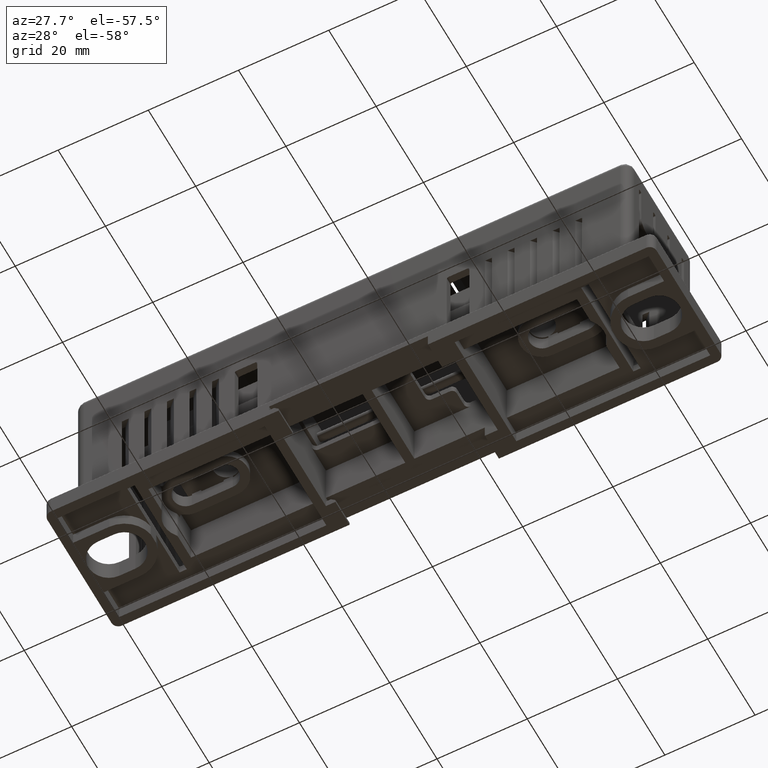
[diagram: clean part render]
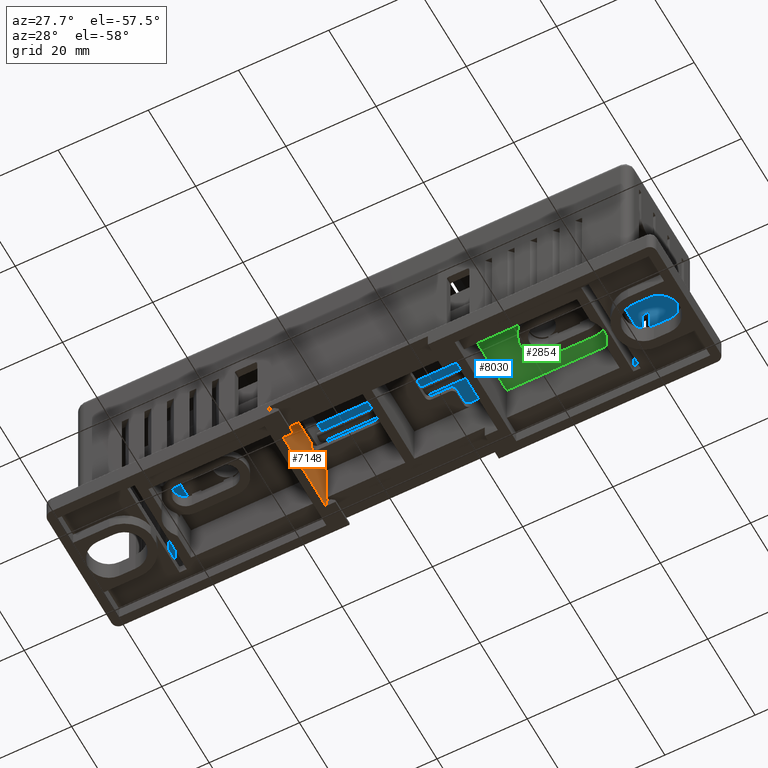
[diagram: same view with three faces highlighted in distinct colors, each labeled with its STEP entity id]
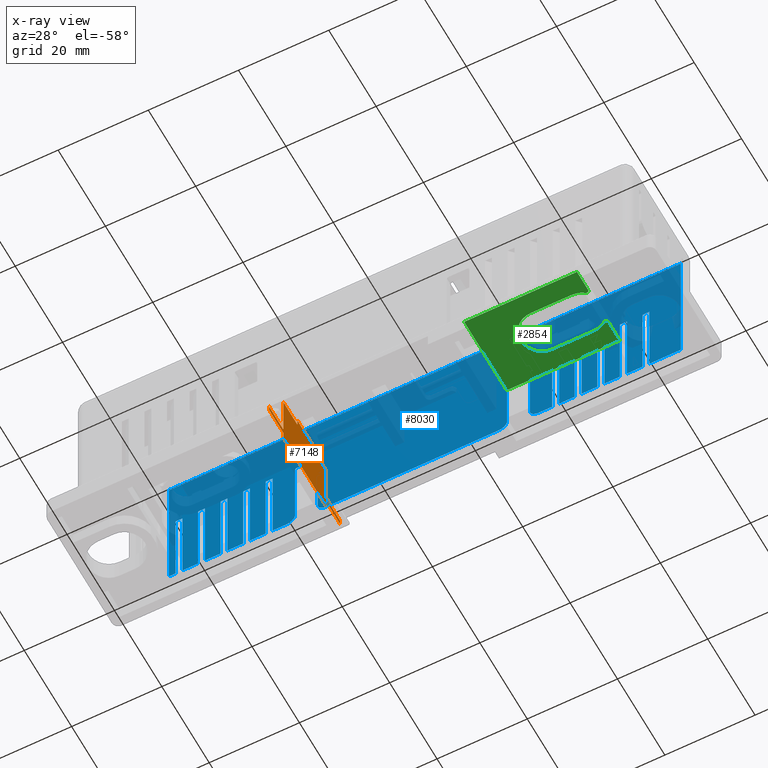
[diagram: x-ray of the same camera — body ghosted, the three highlighted faces saturated]
A machine part, auxiliary view with three faces highlighted in distinct colors.
The next image is the same camera in x-ray (body ghosted, the three faces saturated) — at least one of them is partly hidden behind the body in this view.
Their STEP definitions:

[orange] entity #7148 — the highlighted planar face has unit normal (-1, 0, 0).
#162 = CARTESIAN_POINT ( 'NONE',  ( 1.078740157480315043, 0.7480314960629921295, -0.5905511811023621549 ) ) ;
#219 = ORIENTED_EDGE ( 'NONE', *, *, #5783, .F. ) ;
#227 = DIRECTION ( 'NONE',  ( 0.000000000000000000, 0.000000000000000000, 1.000000000000000000 ) ) ;
#502 = ORIENTED_EDGE ( 'NONE', *, *, #15426, .F. ) ;
#676 = DIRECTION ( 'NONE',  ( 0.000000000000000000, 1.000000000000000000, -0.000000000000000000 ) ) ;
#881 = LINE ( 'NONE', #9620, #8648 ) ;
#936 = DIRECTION ( 'NONE',  ( 0.000000000000000000, 1.000000000000000000, -0.000000000000000000 ) ) ;
#955 = CARTESIAN_POINT ( 'NONE',  ( 1.078740157480315043, 0.2755905511811023723, -0.07874015748031495954 ) ) ;
#1229 = CARTESIAN_POINT ( 'NONE',  ( 1.078740157480315043, 0.9842519685039370358, -0.5905511811023621549 ) ) ;
#1665 = CARTESIAN_POINT ( 'NONE',  ( 1.078740157480315043, 0.03937007874015736181, -1.062992125984252079 ) ) ;
#2047 = CARTESIAN_POINT ( 'NONE',  ( 1.078740157480315043, -0.1968503937007874127, -0.5236220472440945573 ) ) ;
#2103 = LINE ( 'NONE', #3697, #16222 ) ;
#2160 = VERTEX_POINT ( 'NONE', #4886 ) ;
#2432 = LINE ( 'NONE', #7234, #14892 ) ;
#2438 = VECTOR ( 'NONE', #11738, 39.37007874015748143 ) ;
#2522 = EDGE_CURVE ( 'NONE', #15223, #11584, #8284, .T. ) ;
#2555 = VERTEX_POINT ( 'NONE', #3154 ) ;
#2673 = VERTEX_POINT ( 'NONE', #955 ) ;
#2746 = EDGE_CURVE ( 'NONE', #14456, #2555, #881, .T. ) ;
#2855 = VECTOR ( 'NONE', #12057, 39.37007874015748143 ) ;
#3147 = CARTESIAN_POINT ( 'NONE',  ( 1.078740157480315043, 0.7480314960629921295, -0.5905511811023621549 ) ) ;
#3154 = CARTESIAN_POINT ( 'NONE',  ( 1.078740157480314821, 0.03937007874015734793, -0.4724409448818898682 ) ) ;
#3588 = VECTOR ( 'NONE', #4410, 39.37007874015748143 ) ;
#3697 = CARTESIAN_POINT ( 'NONE',  ( 1.078740157480315043, -0.1968503937007874127, -0.01968503937007875723 ) ) ;
#3760 = DIRECTION ( 'NONE',  ( -0.000000000000000000, -0.000000000000000000, -1.000000000000000000 ) ) ;
#3939 = FACE_OUTER_BOUND ( 'NONE', #8940, .T. ) ;
#4124 = EDGE_CURVE ( 'NONE', #16445, #15964, #14734, .T. ) ;
#4334 = CARTESIAN_POINT ( 'NONE',  ( 1.078740157480314821, 0.9842519685039372579, -0.5236220472440945573 ) ) ;
#4410 = DIRECTION ( 'NONE',  ( -0.000000000000000000, -0.000000000000000000, -1.000000000000000000 ) ) ;
#4695 = CARTESIAN_POINT ( 'NONE',  ( 1.078740157480314821, 0.03937007874015735487, -0.07874015748031495954 ) ) ;
#4821 = LINE ( 'NONE', #13815, #9404 ) ;
#4886 = CARTESIAN_POINT ( 'NONE',  ( 1.078740157480315043, 0.9842519685039370358, -0.4724409448818898127 ) ) ;
#4889 = CARTESIAN_POINT ( 'NONE',  ( 1.078740157480315043, 0.5118110236220473341, -0.07874015748031495954 ) ) ;
#5165 = CARTESIAN_POINT ( 'NONE',  ( 1.078740157480315043, 0.2755905511811023723, -0.01968503937007875723 ) ) ;
#5284 = LINE ( 'NONE', #162, #11399 ) ;
#5448 = ORIENTED_EDGE ( 'NONE', *, *, #2522, .F. ) ;
#5512 = CARTESIAN_POINT ( 'NONE',  ( 1.078740157480315043, -0.1968503937007874127, -0.5236220472440945573 ) ) ;
#5585 = ORIENTED_EDGE ( 'NONE', *, *, #7050, .F. ) ;
#5651 = CARTESIAN_POINT ( 'NONE',  ( 1.078740157480314821, -0.1968503937007874127, -0.4724409448818898682 ) ) ;
#5752 = VERTEX_POINT ( 'NONE', #13702 ) ;
#5783 = EDGE_CURVE ( 'NONE', #15504, #5752, #2103, .T. ) ;
#5784 = EDGE_CURVE ( 'NONE', #16588, #12451, #2432, .T. ) ;
#5906 = VECTOR ( 'NONE', #14110, 39.37007874015748143 ) ;
#6117 = ORIENTED_EDGE ( 'NONE', *, *, #2746, .F. ) ;
#6183 = LINE ( 'NONE', #1229, #9060 ) ;
#6280 = ORIENTED_EDGE ( 'NONE', *, *, #11626, .F. ) ;
#6293 = CARTESIAN_POINT ( 'NONE',  ( 1.078740157480315043, -0.1968503937007874127, -0.5905511811023621549 ) ) ;
#6327 = EDGE_CURVE ( 'NONE', #11584, #16588, #5284, .T. ) ;
#6359 = DIRECTION ( 'NONE',  ( -0.000000000000000000, 0.000000000000000000, -1.000000000000000000 ) ) ;
#6469 = CARTESIAN_POINT ( 'NONE',  ( 1.078740157480315043, 0.2755905511811023723, -0.5905511811023621549 ) ) ;
#6514 = EDGE_CURVE ( 'NONE', #11901, #12451, #14603, .T. ) ;
#6567 = ORIENTED_EDGE ( 'NONE', *, *, #10080, .F. ) ;
#6792 = DIRECTION ( 'NONE',  ( 0.000000000000000000, -0.000000000000000000, -1.000000000000000000 ) ) ;
#6822 = LINE ( 'NONE', #15805, #10496 ) ;
#6910 = ORIENTED_EDGE ( 'NONE', *, *, #7875, .F. ) ;
#6937 = CARTESIAN_POINT ( 'NONE',  ( 1.078740157480315043, -0.1968503937007874127, -0.07874015748031495954 ) ) ;
#7050 = EDGE_CURVE ( 'NONE', #15964, #2160, #15028, .T. ) ;
#7103 = LINE ( 'NONE', #6937, #2855 ) ;
#7148 = ADVANCED_FACE ( 'NONE', ( #3939 ), #13853, .F. ) ;
#7234 = CARTESIAN_POINT ( 'NONE',  ( 1.078740157480315043, 0.3937007874015748254, -0.5905511811023621549 ) ) ;
#7650 = EDGE_CURVE ( 'NONE', #2555, #16563, #11732, .T. ) ;
#7705 = VECTOR ( 'NONE', #9375, 39.37007874015748143 ) ;
#7853 = ORIENTED_EDGE ( 'NONE', *, *, #5784, .F. ) ;
#7875 = EDGE_CURVE ( 'NONE', #16563, #2673, #7103, .T. ) ;
#7995 = ORIENTED_EDGE ( 'NONE', *, *, #13905, .F. ) ;
#8001 = CARTESIAN_POINT ( 'NONE',  ( 1.078740157480314821, 0.03937007874015736875, -0.5905511811023621549 ) ) ;
#8284 = LINE ( 'NONE', #5512, #7705 ) ;
#8324 = CARTESIAN_POINT ( 'NONE',  ( 1.078740157480315043, -0.1968503937007874127, -0.4724409448818898127 ) ) ;
#8329 = DIRECTION ( 'NONE',  ( -0.000000000000000000, 0.000000000000000000, 1.000000000000000000 ) ) ;
#8368 = DIRECTION ( 'NONE',  ( -0.000000000000000000, -1.000000000000000000, 0.000000000000000000 ) ) ;
#8648 = VECTOR ( 'NONE', #16325, 39.37007874015748143 ) ;
#8792 = EDGE_CURVE ( 'NONE', #2160, #15223, #6183, .T. ) ;
#8940 = EDGE_LOOP ( 'NONE', ( #502, #219, #7995, #6910, #16018, #6117, #11441, #6280, #15571, #7853, #9469, #5448, #14025, #5585, #15314, #6567 ) ) ;
#9060 = VECTOR ( 'NONE', #6359, 39.37007874015748143 ) ;
#9295 = AXIS2_PLACEMENT_3D ( 'NONE', #6293, #14024, #9989 ) ;
#9375 = DIRECTION ( 'NONE',  ( -0.000000000000000000, -1.000000000000000000, 0.000000000000000000 ) ) ;
#9404 = VECTOR ( 'NONE', #12631, 39.37007874015748143 ) ;
#9469 = ORIENTED_EDGE ( 'NONE', *, *, #6327, .F. ) ;
#9620 = CARTESIAN_POINT ( 'NONE',  ( 1.078740157480315043, -0.1968503937007874127, -0.4724409448818898127 ) ) ;
#9989 = DIRECTION ( 'NONE',  ( 0.000000000000000000, 0.000000000000000000, 1.000000000000000000 ) ) ;
#10080 = EDGE_CURVE ( 'NONE', #14604, #16445, #11817, .T. ) ;
#10163 = DIRECTION ( 'NONE',  ( -0.000000000000000000, -1.000000000000000000, -0.000000000000000000 ) ) ;
#10365 = VECTOR ( 'NONE', #676, 39.37007874015748143 ) ;
#10429 = CARTESIAN_POINT ( 'NONE',  ( 1.078740157480314821, -0.1968503937007874127, -0.5236220472440945573 ) ) ;
#10496 = VECTOR ( 'NONE', #8329, 39.37007874015748143 ) ;
#10515 = VECTOR ( 'NONE', #8368, 39.37007874015748143 ) ;
#10606 = VERTEX_POINT ( 'NONE', #10429 ) ;
#11399 = VECTOR ( 'NONE', #3760, 39.37007874015748143 ) ;
#11434 = VECTOR ( 'NONE', #227, 39.37007874015748143 ) ;
#11441 = ORIENTED_EDGE ( 'NONE', *, *, #13573, .F. ) ;
#11584 = VERTEX_POINT ( 'NONE', #15834 ) ;
#11626 = EDGE_CURVE ( 'NONE', #11901, #10606, #14588, .T. ) ;
#11732 = LINE ( 'NONE', #12908, #11434 ) ;
#11738 = DIRECTION ( 'NONE',  ( 0.000000000000000000, 1.000000000000000000, -0.000000000000000000 ) ) ;
#11817 = LINE ( 'NONE', #15766, #2438 ) ;
#11901 = VERTEX_POINT ( 'NONE', #13133 ) ;
#12057 = DIRECTION ( 'NONE',  ( 0.000000000000000000, 1.000000000000000000, -0.000000000000000000 ) ) ;
#12173 = VECTOR ( 'NONE', #6792, 39.37007874015748143 ) ;
#12451 = VERTEX_POINT ( 'NONE', #8001 ) ;
#12631 = DIRECTION ( 'NONE',  ( -0.000000000000000000, -0.000000000000000000, -1.000000000000000000 ) ) ;
#12685 = LINE ( 'NONE', #6469, #5906 ) ;
#12908 = CARTESIAN_POINT ( 'NONE',  ( 1.078740157480315043, 0.03937007874015734793, -0.5905511811023621549 ) ) ;
#13133 = CARTESIAN_POINT ( 'NONE',  ( 1.078740157480314821, 0.03937007874015736875, -0.5236220472440945573 ) ) ;
#13573 = EDGE_CURVE ( 'NONE', #10606, #14456, #6822, .T. ) ;
#13702 = CARTESIAN_POINT ( 'NONE',  ( 1.078740157480315043, 0.5118110236220473341, -0.01968503937007875029 ) ) ;
#13815 = CARTESIAN_POINT ( 'NONE',  ( 1.078740157480315043, 0.5118110236220473341, -0.5905511811023621549 ) ) ;
#13853 = PLANE ( 'NONE',  #9295 ) ;
#13905 = EDGE_CURVE ( 'NONE', #2673, #15504, #12685, .T. ) ;
#14024 = DIRECTION ( 'NONE',  ( -1.000000000000000000, 0.000000000000000000, 0.000000000000000000 ) ) ;
#14025 = ORIENTED_EDGE ( 'NONE', *, *, #8792, .F. ) ;
#14110 = DIRECTION ( 'NONE',  ( 0.000000000000000000, 0.000000000000000000, 1.000000000000000000 ) ) ;
#14456 = VERTEX_POINT ( 'NONE', #5651 ) ;
#14588 = LINE ( 'NONE', #2047, #10515 ) ;
#14603 = LINE ( 'NONE', #1665, #12173 ) ;
#14604 = VERTEX_POINT ( 'NONE', #4889 ) ;
#14734 = LINE ( 'NONE', #3147, #3588 ) ;
#14858 = CARTESIAN_POINT ( 'NONE',  ( 1.078740157480314821, 0.7480314960629921295, -0.5905511811023621549 ) ) ;
#14892 = VECTOR ( 'NONE', #10163, 39.37007874015748143 ) ;
#15028 = LINE ( 'NONE', #8324, #10365 ) ;
#15223 = VERTEX_POINT ( 'NONE', #4334 ) ;
#15314 = ORIENTED_EDGE ( 'NONE', *, *, #4124, .F. ) ;
#15426 = EDGE_CURVE ( 'NONE', #5752, #14604, #4821, .T. ) ;
#15475 = CARTESIAN_POINT ( 'NONE',  ( 1.078740157480314821, 0.7480314960629921295, -0.4724409448818898682 ) ) ;
#15504 = VERTEX_POINT ( 'NONE', #5165 ) ;
#15571 = ORIENTED_EDGE ( 'NONE', *, *, #6514, .T. ) ;
#15623 = CARTESIAN_POINT ( 'NONE',  ( 1.078740157480314821, 0.7480314960629921295, -0.07874015748031495954 ) ) ;
#15766 = CARTESIAN_POINT ( 'NONE',  ( 1.078740157480315043, -0.1968503937007874127, -0.07874015748031495954 ) ) ;
#15805 = CARTESIAN_POINT ( 'NONE',  ( 1.078740157480315043, -0.1968503937007874127, -0.5905511811023621549 ) ) ;
#15834 = CARTESIAN_POINT ( 'NONE',  ( 1.078740157480314821, 0.7480314960629921295, -0.5236220472440945573 ) ) ;
#15964 = VERTEX_POINT ( 'NONE', #15475 ) ;
#16018 = ORIENTED_EDGE ( 'NONE', *, *, #7650, .F. ) ;
#16222 = VECTOR ( 'NONE', #936, 39.37007874015748143 ) ;
#16325 = DIRECTION ( 'NONE',  ( 0.000000000000000000, 1.000000000000000000, -0.000000000000000000 ) ) ;
#16445 = VERTEX_POINT ( 'NONE', #15623 ) ;
#16563 = VERTEX_POINT ( 'NONE', #4695 ) ;
#16588 = VERTEX_POINT ( 'NONE', #14858 ) ;

[blue] entity #8030 — the highlighted planar face has unit normal (0, 1, 0).
#8 = CARTESIAN_POINT ( 'NONE',  ( 3.582283464566929254, 0.8661417322834645827, -0.3937007874015748254 ) ) ;
#29 = CARTESIAN_POINT ( 'NONE',  ( 0.5515748031496063852, 0.8661417322834645827, 0.3543307086614173596 ) ) ;
#32 = ORIENTED_EDGE ( 'NONE', *, *, #7324, .F. ) ;
#43 = ORIENTED_EDGE ( 'NONE', *, *, #13100, .F. ) ;
#117 = CARTESIAN_POINT ( 'NONE',  ( 0.6692913385826771977, 0.8661417322834645827, -0.3149606299212598381 ) ) ;
#215 = CIRCLE ( 'NONE', #9560, 0.07874015748031495954 ) ;
#234 = EDGE_CURVE ( 'NONE', #7308, #2625, #1391, .T. ) ;
#276 = VECTOR ( 'NONE', #9644, 39.37007874015748143 ) ;
#326 = VERTEX_POINT ( 'NONE', #9859 ) ;
#359 = CARTESIAN_POINT ( 'NONE',  ( 2.795275590551181466, 0.8661417322834645827, -0.3149606299212598381 ) ) ;
#367 = EDGE_CURVE ( 'NONE', #16227, #12740, #10952, .T. ) ;
#389 = VECTOR ( 'NONE', #16567, 39.37007874015748143 ) ;
#405 = DIRECTION ( 'NONE',  ( -0.000000000000000000, 0.000000000000000000, -1.000000000000000000 ) ) ;
#456 = VERTEX_POINT ( 'NONE', #1031 ) ;
#473 = DIRECTION ( 'NONE',  ( 0.000000000000000000, 0.000000000000000000, 1.000000000000000000 ) ) ;
#482 = DIRECTION ( 'NONE',  ( 0.000000000000000000, 1.000000000000000000, 0.000000000000000000 ) ) ;
#483 = EDGE_CURVE ( 'NONE', #9728, #2403, #12793, .T. ) ;
#507 = ORIENTED_EDGE ( 'NONE', *, *, #6531, .F. ) ;
#593 = ORIENTED_EDGE ( 'NONE', *, *, #2619, .F. ) ;
#647 = ORIENTED_EDGE ( 'NONE', *, *, #10897, .F. ) ;
#661 = EDGE_CURVE ( 'NONE', #11604, #9395, #15567, .T. ) ;
#681 = EDGE_CURVE ( 'NONE', #1687, #8729, #2003, .T. ) ;
#696 = EDGE_CURVE ( 'NONE', #7116, #13197, #8650, .T. ) ;
#753 = CARTESIAN_POINT ( 'NONE',  ( 1.771653543307086576, 0.8661417322834645827, -0.3937007874015748254 ) ) ;
#772 = CARTESIAN_POINT ( 'NONE',  ( 1.771653543307086576, 0.8661417322834645827, 0.3543307086614174151 ) ) ;
#817 = CARTESIAN_POINT ( 'NONE',  ( 2.618110236220472675, 0.8661417322834645827, 0.3346456692913382103 ) ) ;
#845 = CARTESIAN_POINT ( 'NONE',  ( 1.023622047244094668, 0.8661417322834645827, -0.3937007874015748254 ) ) ;
#864 = CARTESIAN_POINT ( 'NONE',  ( 3.779133858267716306, 0.8661417322834645827, -0.3937007874015748254 ) ) ;
#945 = EDGE_CURVE ( 'NONE', #9826, #4995, #2390, .T. ) ;
#1005 = ORIENTED_EDGE ( 'NONE', *, *, #681, .F. ) ;
#1031 = CARTESIAN_POINT ( 'NONE',  ( 3.188582677165354262, 0.8661417322834645827, 0.3543307086614175261 ) ) ;
#1066 = VECTOR ( 'NONE', #6122, 39.37007874015748143 ) ;
#1070 = ORIENTED_EDGE ( 'NONE', *, *, #483, .T. ) ;
#1076 = LINE ( 'NONE', #8820, #3383 ) ;
#1096 = LINE ( 'NONE', #4961, #8183 ) ;
#1115 = CARTESIAN_POINT ( 'NONE',  ( 1.771653543307086576, 0.8661417322834645827, -0.3937007874015748254 ) ) ;
#1137 = ORIENTED_EDGE ( 'NONE', *, *, #12761, .F. ) ;
#1140 = VERTEX_POINT ( 'NONE', #2233 ) ;
#1207 = EDGE_CURVE ( 'NONE', #1140, #11691, #15837, .T. ) ;
#1219 = ORIENTED_EDGE ( 'NONE', *, *, #7146, .F. ) ;
#1242 = VECTOR ( 'NONE', #7021, 39.37007874015748143 ) ;
#1294 = CARTESIAN_POINT ( 'NONE',  ( 1.771653543307086576, 0.8661417322834645827, -0.3937007874015748254 ) ) ;
#1304 = VECTOR ( 'NONE', #11782, 39.37007874015748143 ) ;
#1318 = LINE ( 'NONE', #2488, #7037 ) ;
#1364 = ORIENTED_EDGE ( 'NONE', *, *, #8798, .T. ) ;
#1391 = LINE ( 'NONE', #8029, #13160 ) ;
#1393 = DIRECTION ( 'NONE',  ( 0.000000000000000000, 0.000000000000000000, 1.000000000000000000 ) ) ;
#1462 = EDGE_CURVE ( 'NONE', #14804, #16016, #215, .T. ) ;
#1514 = CARTESIAN_POINT ( 'NONE',  ( -0.03897637795275581823, 0.8661417322834645827, -0.3937007874015748254 ) ) ;
#1519 = CARTESIAN_POINT ( 'NONE',  ( 0.9448818897637796255, 0.8661417322834645827, -0.3149606299212598381 ) ) ;
#1561 = LINE ( 'NONE', #14586, #4762 ) ;
#1615 = VECTOR ( 'NONE', #3987, 39.37007874015748143 ) ;
#1687 = VERTEX_POINT ( 'NONE', #3898 ) ;
#1750 = ORIENTED_EDGE ( 'NONE', *, *, #14448, .T. ) ;
#1770 = LINE ( 'NONE', #15553, #4675 ) ;
#1844 = VERTEX_POINT ( 'NONE', #6505 ) ;
#1847 = CARTESIAN_POINT ( 'NONE',  ( 2.795275590551181466, 0.8661417322834645827, -0.3937007874015748254 ) ) ;
#1859 = DIRECTION ( 'NONE',  ( -1.000000000000000000, -0.000000000000000000, 0.000000000000000000 ) ) ;
#1889 = EDGE_CURVE ( 'NONE', #8285, #5627, #5737, .T. ) ;
#1896 = VECTOR ( 'NONE', #4651, 39.37007874015748143 ) ;
#2003 = LINE ( 'NONE', #2328, #1066 ) ;
#2054 = VECTOR ( 'NONE', #15644, 39.37007874015748143 ) ;
#2062 = VECTOR ( 'NONE', #3278, 39.37007874015748143 ) ;
#2063 = DIRECTION ( 'NONE',  ( 0.000000000000000000, -0.000000000000000000, 1.000000000000000000 ) ) ;
#2079 = VERTEX_POINT ( 'NONE', #8 ) ;
#2086 = ORIENTED_EDGE ( 'NONE', *, *, #3240, .F. ) ;
#2119 = ORIENTED_EDGE ( 'NONE', *, *, #14030, .F. ) ;
#2157 = VECTOR ( 'NONE', #15664, 39.37007874015748143 ) ;
#2222 = LINE ( 'NONE', #11378, #10674 ) ;
#2231 = VERTEX_POINT ( 'NONE', #14379 ) ;
#2233 = CARTESIAN_POINT ( 'NONE',  ( 2.775590551181102761, 0.8661417322834645827, 0.3543307086614173596 ) ) ;
#2247 = VECTOR ( 'NONE', #12103, 39.37007874015748143 ) ;
#2267 = EDGE_CURVE ( 'NONE', #9170, #11743, #12020, .T. ) ;
#2307 = CARTESIAN_POINT ( 'NONE',  ( 2.598425196850393970, 0.8661417322834645827, 0.3346456692913382103 ) ) ;
#2328 = CARTESIAN_POINT ( 'NONE',  ( 0.3547244094488190558, 0.8661417322834645827, -0.3937007874015748254 ) ) ;
#2335 = CARTESIAN_POINT ( 'NONE',  ( 3.445275590551181377, 0.8661417322834645827, -0.3937007874015748254 ) ) ;
#2363 = ORIENTED_EDGE ( 'NONE', *, *, #14125, .F. ) ;
#2383 = DIRECTION ( 'NONE',  ( 0.000000000000000000, 1.000000000000000000, 0.000000000000000000 ) ) ;
#2390 = CIRCLE ( 'NONE', #11800, 0.07874015748031495954 ) ;
#2403 = VERTEX_POINT ( 'NONE', #14082 ) ;
#2466 = CARTESIAN_POINT ( 'NONE',  ( 0.5515748031496063852, 0.8661417322834646937, -0.3937007874015748810 ) ) ;
#2488 = CARTESIAN_POINT ( 'NONE',  ( 2.972440944881889813, 0.8661417322834645827, 0.3543307086614173596 ) ) ;
#2514 = DIRECTION ( 'NONE',  ( 0.000000000000000000, -0.000000000000000000, 1.000000000000000000 ) ) ;
#2575 = DIRECTION ( 'NONE',  ( 0.000000000000000000, 1.000000000000000000, 0.000000000000000000 ) ) ;
#2598 = CARTESIAN_POINT ( 'NONE',  ( 3.445275590551181377, 0.8661417322834645827, -0.3937007874015748254 ) ) ;
#2619 = EDGE_CURVE ( 'NONE', #3539, #13197, #1561, .T. ) ;
#2625 = VERTEX_POINT ( 'NONE', #7181 ) ;
#2683 = VECTOR ( 'NONE', #3002, 39.37007874015748143 ) ;
#2722 = AXIS2_PLACEMENT_3D ( 'NONE', #3086, #482, #5602 ) ;
#2774 = LINE ( 'NONE', #10161, #15955 ) ;
#2811 = VECTOR ( 'NONE', #10277, 39.37007874015748143 ) ;
#2844 = CARTESIAN_POINT ( 'NONE',  ( -0.3543307086614173596, 0.8661417322834645827, -0.3937007874015748254 ) ) ;
#2846 = VECTOR ( 'NONE', #10327, 39.37007874015748143 ) ;
#3002 = DIRECTION ( 'NONE',  ( 1.000000000000000000, 0.000000000000000000, -0.000000000000000000 ) ) ;
#3044 = CARTESIAN_POINT ( 'NONE',  ( 1.771653543307086576, 0.8661417322834645827, 0.8464566929133857665 ) ) ;
#3062 = VECTOR ( 'NONE', #11278, 39.37007874015748143 ) ;
#3086 = CARTESIAN_POINT ( 'NONE',  ( 0.7677165354330708347, 0.8661417322834645827, 0.3346456692913385988 ) ) ;
#3101 = CARTESIAN_POINT ( 'NONE',  ( 1.771653543307086576, 0.8661417322834645827, -0.3937007874015748254 ) ) ;
#3123 = CARTESIAN_POINT ( 'NONE',  ( 3.582283464566929254, 0.8661417322834645827, 0.3543307086614173596 ) ) ;
#3126 = CARTESIAN_POINT ( 'NONE',  ( -0.2956692913385827182, 0.8661417322834645827, 0.3543307086614173596 ) ) ;
#3166 = ORIENTED_EDGE ( 'NONE', *, *, #13026, .F. ) ;
#3187 = LINE ( 'NONE', #15880, #14327 ) ;
#3240 = EDGE_CURVE ( 'NONE', #7116, #13292, #9099, .T. ) ;
#3261 = LINE ( 'NONE', #11230, #3693 ) ;
#3278 = DIRECTION ( 'NONE',  ( -1.000000000000000000, -0.000000000000000000, 0.000000000000000000 ) ) ;
#3306 = ORIENTED_EDGE ( 'NONE', *, *, #5599, .F. ) ;
#3309 = DIRECTION ( 'NONE',  ( -1.000000000000000000, -0.000000000000000000, 0.000000000000000000 ) ) ;
#3310 = DIRECTION ( 'NONE',  ( 1.000000000000000000, 0.000000000000000000, 9.691192603222390418E-18 ) ) ;
#3321 = CARTESIAN_POINT ( 'NONE',  ( 1.771653543307086576, 0.8661417322834645827, -0.3937007874015748254 ) ) ;
#3329 = EDGE_LOOP ( 'NONE', ( #6129, #14094, #14475, #10969, #3306, #2119, #3166, #10644, #11233, #5278, #2086, #7702, #593, #3971, #10990, #10271, #1005, #32, #4681, #15530, #507, #4106, #5535, #5105, #8789, #13002, #12878, #15824, #14995, #9386, #13928, #13356, #12966, #2363, #11928, #7621, #7012, #7948, #8068, #1070, #5025, #11671, #1219, #1750, #10273, #10686, #647, #1364, #9001, #15227, #1137, #11385, #9115, #43, #16467, #16546, #10888, #12181, #6881, #12205 ) ) ;
#3343 = CARTESIAN_POINT ( 'NONE',  ( 3.248425196850393881, 0.8661417322834645827, -0.3937007874015748254 ) ) ;
#3368 = EDGE_CURVE ( 'NONE', #15183, #15455, #12112, .T. ) ;
#3383 = VECTOR ( 'NONE', #8739, 39.37007874015748143 ) ;
#3393 = VERTEX_POINT ( 'NONE', #3123 ) ;
#3410 = EDGE_CURVE ( 'NONE', #3393, #15455, #1318, .T. ) ;
#3539 = VERTEX_POINT ( 'NONE', #11007 ) ;
#3573 = EDGE_CURVE ( 'NONE', #4801, #6521, #14177, .T. ) ;
#3575 = VECTOR ( 'NONE', #3310, 39.37007874015748143 ) ;
#3613 = EDGE_CURVE ( 'NONE', #16263, #5913, #14565, .T. ) ;
#3635 = CARTESIAN_POINT ( 'NONE',  ( 2.972440944881889813, 0.8661417322834645827, 0.3543307086614173596 ) ) ;
#3671 = DIRECTION ( 'NONE',  ( 1.000000000000000000, 0.000000000000000000, 9.691192603222390418E-18 ) ) ;
#3678 = AXIS2_PLACEMENT_3D ( 'NONE', #10433, #15558, #9867 ) ;
#3693 = VECTOR ( 'NONE', #9731, 39.37007874015748143 ) ;
#3738 = VECTOR ( 'NONE', #9268, 39.37007874015748143 ) ;
#3822 = VECTOR ( 'NONE', #10602, 39.37007874015748143 ) ;
#3898 = CARTESIAN_POINT ( 'NONE',  ( 0.3547244094488189448, 0.8661417322834645827, -0.3937007874015748810 ) ) ;
#3968 = CARTESIAN_POINT ( 'NONE',  ( 1.771653543307086576, 0.8661417322834645827, 0.3543307086614174151 ) ) ;
#3971 = ORIENTED_EDGE ( 'NONE', *, *, #7842, .F. ) ;
#3987 = DIRECTION ( 'NONE',  ( -1.000000000000000000, -0.000000000000000000, 0.000000000000000000 ) ) ;
#3997 = DIRECTION ( 'NONE',  ( 0.000000000000000000, -0.000000000000000000, 1.000000000000000000 ) ) ;
#4097 = VECTOR ( 'NONE', #405, 39.37007874015748143 ) ;
#4106 = ORIENTED_EDGE ( 'NONE', *, *, #6845, .F. ) ;
#4150 = VERTEX_POINT ( 'NONE', #8687 ) ;
#4171 = EDGE_CURVE ( 'NONE', #2079, #7138, #16319, .T. ) ;
#4205 = CARTESIAN_POINT ( 'NONE',  ( 0.4917322834645669327, 0.8661417322834645827, 0.3543307086614173596 ) ) ;
#4258 = CARTESIAN_POINT ( 'NONE',  ( 2.972440944881889813, 0.8661417322834645827, 0.3543307086614173596 ) ) ;
#4267 = CARTESIAN_POINT ( 'NONE',  ( 0.4917322834645669882, 0.8661417322834645827, -0.3937007874015748810 ) ) ;
#4275 = LINE ( 'NONE', #3101, #276 ) ;
#4307 = VERTEX_POINT ( 'NONE', #12869 ) ;
#4523 = LINE ( 'NONE', #9565, #4825 ) ;
#4638 = DIRECTION ( 'NONE',  ( 1.000000000000000000, 0.000000000000000000, -0.000000000000000000 ) ) ;
#4651 = DIRECTION ( 'NONE',  ( -0.000000000000000000, 0.000000000000000000, -1.000000000000000000 ) ) ;
#4675 = VECTOR ( 'NONE', #9343, 39.37007874015748143 ) ;
#4681 = ORIENTED_EDGE ( 'NONE', *, *, #3573, .F. ) ;
#4689 = EDGE_CURVE ( 'NONE', #13292, #8275, #2774, .T. ) ;
#4703 = CARTESIAN_POINT ( 'NONE',  ( 2.519685039370078705, 0.8661417322834645827, -0.3937007874015748254 ) ) ;
#4711 = EDGE_CURVE ( 'NONE', #8275, #9324, #13105, .T. ) ;
#4751 = VECTOR ( 'NONE', #5977, 39.37007874015748143 ) ;
#4762 = VECTOR ( 'NONE', #6684, 39.37007874015748143 ) ;
#4801 = VERTEX_POINT ( 'NONE', #4205 ) ;
#4814 = DIRECTION ( 'NONE',  ( 1.000000000000000000, 0.000000000000000000, -0.000000000000000000 ) ) ;
#4825 = VECTOR ( 'NONE', #10823, 39.37007874015748143 ) ;
#4842 = VECTOR ( 'NONE', #4814, 39.37007874015748143 ) ;
#4961 = CARTESIAN_POINT ( 'NONE',  ( 3.248425196850393881, 0.8661417322834645827, -0.3937007874015748254 ) ) ;
#4987 = CARTESIAN_POINT ( 'NONE',  ( 3.779133858267716306, 0.8661417322834645827, -0.3937007874015748254 ) ) ;
#4995 = VERTEX_POINT ( 'NONE', #4703 ) ;
#5025 = ORIENTED_EDGE ( 'NONE', *, *, #9212, .F. ) ;
#5075 = CARTESIAN_POINT ( 'NONE',  ( 3.838976377952757257, 0.8661417322834642496, -0.3937007874015748254 ) ) ;
#5105 = ORIENTED_EDGE ( 'NONE', *, *, #9632, .F. ) ;
#5116 = LINE ( 'NONE', #11587, #2846 ) ;
#5155 = LINE ( 'NONE', #10529, #2811 ) ;
#5170 = CARTESIAN_POINT ( 'NONE',  ( 3.188582677165354262, 0.8661417322834645827, -0.3937007874015748254 ) ) ;
#5230 = CARTESIAN_POINT ( 'NONE',  ( 0.7480314960629921295, 0.8661417322834645827, 0.3346456692913385988 ) ) ;
#5235 = FACE_OUTER_BOUND ( 'NONE', #3329, .T. ) ;
#5278 = ORIENTED_EDGE ( 'NONE', *, *, #4689, .F. ) ;
#5309 = EDGE_CURVE ( 'NONE', #15909, #9324, #14829, .T. ) ;
#5319 = CARTESIAN_POINT ( 'NONE',  ( 2.991732283464567210, 0.8661417322834646937, 0.3543307086614174151 ) ) ;
#5382 = VECTOR ( 'NONE', #3309, 39.37007874015748143 ) ;
#5442 = CARTESIAN_POINT ( 'NONE',  ( 2.972440944881889813, 0.8661417322834645827, 0.3543307086614173596 ) ) ;
#5456 = LINE ( 'NONE', #5533, #9562 ) ;
#5483 = EDGE_CURVE ( 'NONE', #9498, #10291, #12470, .T. ) ;
#5513 = VERTEX_POINT ( 'NONE', #29 ) ;
#5525 = DIRECTION ( 'NONE',  ( 0.000000000000000000, 0.000000000000000000, 1.000000000000000000 ) ) ;
#5533 = CARTESIAN_POINT ( 'NONE',  ( 1.771653543307086576, 0.8661417322834645827, -0.3937007874015748254 ) ) ;
#5535 = ORIENTED_EDGE ( 'NONE', *, *, #661, .F. ) ;
#5599 = EDGE_CURVE ( 'NONE', #8229, #8285, #5155, .T. ) ;
#5602 = DIRECTION ( 'NONE',  ( 0.000000000000000000, 0.000000000000000000, 1.000000000000000000 ) ) ;
#5627 = VERTEX_POINT ( 'NONE', #3126 ) ;
#5731 = EDGE_CURVE ( 'NONE', #14134, #326, #1096, .T. ) ;
#5737 = LINE ( 'NONE', #772, #14406 ) ;
#5790 = DIRECTION ( 'NONE',  ( 1.000000000000000000, 0.000000000000000000, 9.691192603222390418E-18 ) ) ;
#5857 = CARTESIAN_POINT ( 'NONE',  ( 1.771653543307086576, 0.8661417322834645827, -0.3937007874015748254 ) ) ;
#5913 = VERTEX_POINT ( 'NONE', #1519 ) ;
#5926 = LINE ( 'NONE', #3321, #1242 ) ;
#5935 = CIRCLE ( 'NONE', #7838, 0.01968503937007875723 ) ;
#5971 = VECTOR ( 'NONE', #12610, 39.37007874015748143 ) ;
#5976 = LINE ( 'NONE', #13690, #8091 ) ;
#5977 = DIRECTION ( 'NONE',  ( 0.000000000000000000, -0.000000000000000000, 1.000000000000000000 ) ) ;
#6017 = EDGE_CURVE ( 'NONE', #7138, #1844, #9000, .T. ) ;
#6101 = CARTESIAN_POINT ( 'NONE',  ( 0.5515748031496063852, 0.8661417322834645827, -0.3937007874015748254 ) ) ;
#6106 = EDGE_CURVE ( 'NONE', #9498, #11689, #3187, .T. ) ;
#6122 = DIRECTION ( 'NONE',  ( 0.000000000000000000, -0.000000000000000000, 1.000000000000000000 ) ) ;
#6129 = ORIENTED_EDGE ( 'NONE', *, *, #234, .F. ) ;
#6195 = VECTOR ( 'NONE', #3671, 39.37007874015748143 ) ;
#6290 = VERTEX_POINT ( 'NONE', #10148 ) ;
#6335 = CARTESIAN_POINT ( 'NONE',  ( 0.9448818897637796255, 0.8661417322834645827, 0.3346456692913385988 ) ) ;
#6420 = DIRECTION ( 'NONE',  ( -1.000000000000000000, -0.000000000000000000, 0.000000000000000000 ) ) ;
#6505 = CARTESIAN_POINT ( 'NONE',  ( 3.445275590551181377, 0.8661417322834645827, 0.3543307086614175261 ) ) ;
#6521 = VERTEX_POINT ( 'NONE', #4267 ) ;
#6531 = EDGE_CURVE ( 'NONE', #9233, #5513, #9393, .T. ) ;
#6578 = CARTESIAN_POINT ( 'NONE',  ( 0.7480314960629921295, 0.8661417322834645827, -0.3937007874015748254 ) ) ;
#6589 = VERTEX_POINT ( 'NONE', #2307 ) ;
#6684 = DIRECTION ( 'NONE',  ( 0.000000000000000000, -0.000000000000000000, 1.000000000000000000 ) ) ;
#6698 = AXIS2_PLACEMENT_3D ( 'NONE', #117, #15022, #15104 ) ;
#6736 = LINE ( 'NONE', #6578, #1304 ) ;
#6759 = LINE ( 'NONE', #11890, #2157 ) ;
#6772 = DIRECTION ( 'NONE',  ( 0.000000000000000000, 0.000000000000000000, 1.000000000000000000 ) ) ;
#6787 = CARTESIAN_POINT ( 'NONE',  ( 1.023622047244094668, 0.8661417322834645827, -0.3149606299212598381 ) ) ;
#6845 = EDGE_CURVE ( 'NONE', #9395, #9233, #1770, .T. ) ;
#6855 = CARTESIAN_POINT ( 'NONE',  ( 2.874015748031495843, 0.8661417322834645827, -0.3149606299212598381 ) ) ;
#6858 = CARTESIAN_POINT ( 'NONE',  ( 0.7480314960629922405, 0.8661417322834645827, -0.3149606299212598381 ) ) ;
#6881 = ORIENTED_EDGE ( 'NONE', *, *, #6106, .T. ) ;
#6923 = EDGE_CURVE ( 'NONE', #16016, #11691, #8167, .T. ) ;
#7012 = ORIENTED_EDGE ( 'NONE', *, *, #1462, .F. ) ;
#7021 = DIRECTION ( 'NONE',  ( -1.000000000000000000, -0.000000000000000000, 0.000000000000000000 ) ) ;
#7022 = AXIS2_PLACEMENT_3D ( 'NONE', #8451, #11979, #473 ) ;
#7037 = VECTOR ( 'NONE', #4638, 39.37007874015748143 ) ;
#7046 = VECTOR ( 'NONE', #14395, 39.37007874015748143 ) ;
#7075 = EDGE_CURVE ( 'NONE', #4150, #13148, #1076, .T. ) ;
#7116 = VERTEX_POINT ( 'NONE', #16621 ) ;
#7138 = VERTEX_POINT ( 'NONE', #2335 ) ;
#7145 = CARTESIAN_POINT ( 'NONE',  ( 3.838976377952756369, 0.8661417322834645827, -0.3937007874015748254 ) ) ;
#7146 = EDGE_CURVE ( 'NONE', #456, #9170, #5116, .T. ) ;
#7181 = CARTESIAN_POINT ( 'NONE',  ( -0.3543307086614173596, 0.8661417322834645827, 0.8464566929133857665 ) ) ;
#7308 = VERTEX_POINT ( 'NONE', #2844 ) ;
#7315 = DIRECTION ( 'NONE',  ( -4.845596301611203683E-18, 4.845596301611196750E-18, 1.000000000000000000 ) ) ;
#7324 = EDGE_CURVE ( 'NONE', #6521, #1687, #5456, .T. ) ;
#7356 = DIRECTION ( 'NONE',  ( 0.000000000000000000, -0.000000000000000000, 1.000000000000000000 ) ) ;
#7397 = LINE ( 'NONE', #9755, #16098 ) ;
#7452 = CARTESIAN_POINT ( 'NONE',  ( 3.385433070866141758, 0.8661417322834645827, 0.3543307086614175261 ) ) ;
#7508 = DIRECTION ( 'NONE',  ( -0.000000000000000000, 0.000000000000000000, -1.000000000000000000 ) ) ;
#7621 = ORIENTED_EDGE ( 'NONE', *, *, #6923, .F. ) ;
#7647 = CARTESIAN_POINT ( 'NONE',  ( 0.9251968503937008093, 0.8661417322834645827, 0.3543307086614173596 ) ) ;
#7702 = ORIENTED_EDGE ( 'NONE', *, *, #696, .T. ) ;
#7749 = PLANE ( 'NONE',  #3678 ) ;
#7766 = LINE ( 'NONE', #12883, #1615 ) ;
#7795 = VECTOR ( 'NONE', #8474, 39.37007874015748143 ) ;
#7838 = AXIS2_PLACEMENT_3D ( 'NONE', #817, #13836, #8639 ) ;
#7842 = EDGE_CURVE ( 'NONE', #13148, #3539, #5926, .T. ) ;
#7948 = ORIENTED_EDGE ( 'NONE', *, *, #15554, .F. ) ;
#7949 = DIRECTION ( 'NONE',  ( 0.000000000000000000, 1.000000000000000000, 0.000000000000000000 ) ) ;
#8029 = CARTESIAN_POINT ( 'NONE',  ( -0.3543307086614173596, 0.8661417322834645827, -0.3937007874015748254 ) ) ;
#8030 = ADVANCED_FACE ( 'NONE', ( #5235 ), #7749, .F. ) ;
#8043 = CARTESIAN_POINT ( 'NONE',  ( 0.4917322834645669882, 0.8661417322834645827, -0.3937007874015748254 ) ) ;
#8066 = EDGE_CURVE ( 'NONE', #2625, #11689, #15721, .T. ) ;
#8068 = ORIENTED_EDGE ( 'NONE', *, *, #13226, .F. ) ;
#8091 = VECTOR ( 'NONE', #7315, 39.37007874015748143 ) ;
#8167 = LINE ( 'NONE', #1847, #2247 ) ;
#8183 = VECTOR ( 'NONE', #13790, 39.37007874015748143 ) ;
#8190 = LINE ( 'NONE', #9522, #7046 ) ;
#8229 = VERTEX_POINT ( 'NONE', #11176 ) ;
#8275 = VERTEX_POINT ( 'NONE', #15117 ) ;
#8277 = EDGE_CURVE ( 'NONE', #5913, #15450, #16221, .T. ) ;
#8285 = VERTEX_POINT ( 'NONE', #8420 ) ;
#8372 = VERTEX_POINT ( 'NONE', #7647 ) ;
#8405 = VERTEX_POINT ( 'NONE', #16625 ) ;
#8420 = CARTESIAN_POINT ( 'NONE',  ( -0.2358267716535433212, 0.8661417322834645827, 0.3543307086614173596 ) ) ;
#8443 = VECTOR ( 'NONE', #2514, 39.37007874015748143 ) ;
#8451 = CARTESIAN_POINT ( 'NONE',  ( 0.9251968503937008093, 0.8661417322834645827, 0.3346456692913385988 ) ) ;
#8474 = DIRECTION ( 'NONE',  ( -1.000000000000000000, -0.000000000000000000, 0.000000000000000000 ) ) ;
#8639 = DIRECTION ( 'NONE',  ( 0.000000000000000000, 0.000000000000000000, 1.000000000000000000 ) ) ;
#8650 = LINE ( 'NONE', #12506, #12607 ) ;
#8653 = EDGE_CURVE ( 'NONE', #4150, #8729, #3261, .T. ) ;
#8659 = VERTEX_POINT ( 'NONE', #13668 ) ;
#8687 = CARTESIAN_POINT ( 'NONE',  ( 0.2948818897637795478, 0.8661417322834645827, 0.3543307086614173596 ) ) ;
#8729 = VERTEX_POINT ( 'NONE', #8803 ) ;
#8739 = DIRECTION ( 'NONE',  ( -0.000000000000000000, 0.000000000000000000, -1.000000000000000000 ) ) ;
#8789 = ORIENTED_EDGE ( 'NONE', *, *, #10016, .T. ) ;
#8798 = EDGE_CURVE ( 'NONE', #16529, #1844, #13248, .T. ) ;
#8803 = CARTESIAN_POINT ( 'NONE',  ( 0.3547244094488189448, 0.8661417322834645827, 0.3543307086614173596 ) ) ;
#8820 = CARTESIAN_POINT ( 'NONE',  ( 0.2948818897637793812, 0.8661417322834645827, -0.3937007874015748254 ) ) ;
#8857 = CARTESIAN_POINT ( 'NONE',  ( 2.991732283464567210, 0.8661417322834646937, -0.3937007874015748254 ) ) ;
#8859 = CARTESIAN_POINT ( 'NONE',  ( 2.598425196850393970, 0.8661417322834645827, -0.3937007874015748254 ) ) ;
#8912 = CIRCLE ( 'NONE', #7022, 0.01968503937007875723 ) ;
#8918 = DIRECTION ( 'NONE',  ( -1.000000000000000000, -0.000000000000000000, 0.000000000000000000 ) ) ;
#9000 = LINE ( 'NONE', #2598, #13022 ) ;
#9001 = ORIENTED_EDGE ( 'NONE', *, *, #6017, .F. ) ;
#9068 = CARTESIAN_POINT ( 'NONE',  ( 3.642125984251968873, 0.8661417322834645827, -0.3937007874015748254 ) ) ;
#9099 = LINE ( 'NONE', #14053, #16424 ) ;
#9115 = ORIENTED_EDGE ( 'NONE', *, *, #3368, .F. ) ;
#9144 = DIRECTION ( 'NONE',  ( 0.000000000000000000, 0.000000000000000000, 1.000000000000000000 ) ) ;
#9170 = VERTEX_POINT ( 'NONE', #5170 ) ;
#9212 = EDGE_CURVE ( 'NONE', #11743, #2403, #2222, .T. ) ;
#9233 = VERTEX_POINT ( 'NONE', #2466 ) ;
#9268 = DIRECTION ( 'NONE',  ( -1.000000000000000000, -0.000000000000000000, 0.000000000000000000 ) ) ;
#9324 = VERTEX_POINT ( 'NONE', #12888 ) ;
#9343 = DIRECTION ( 'NONE',  ( -1.000000000000000000, -0.000000000000000000, 0.000000000000000000 ) ) ;
#9386 = ORIENTED_EDGE ( 'NONE', *, *, #11249, .F. ) ;
#9393 = LINE ( 'NONE', #6101, #15940 ) ;
#9395 = VERTEX_POINT ( 'NONE', #13636 ) ;
#9498 = VERTEX_POINT ( 'NONE', #16400 ) ;
#9522 = CARTESIAN_POINT ( 'NONE',  ( 3.385433070866141758, 0.8661417322834645827, -0.3937007874015748254 ) ) ;
#9543 = CARTESIAN_POINT ( 'NONE',  ( 4.114173228346456490, 0.8661417322834646937, 0.8464566929133857665 ) ) ;
#9560 = AXIS2_PLACEMENT_3D ( 'NONE', #6855, #7949, #6772 ) ;
#9562 = VECTOR ( 'NONE', #10574, 39.37007874015748143 ) ;
#9565 = CARTESIAN_POINT ( 'NONE',  ( 1.771653543307086576, 0.8661417322834645827, -0.3937007874015748254 ) ) ;
#9632 = EDGE_CURVE ( 'NONE', #10590, #11604, #6736, .T. ) ;
#9644 = DIRECTION ( 'NONE',  ( -1.000000000000000000, -0.000000000000000000, 0.000000000000000000 ) ) ;
#9728 = VERTEX_POINT ( 'NONE', #5319 ) ;
#9731 = DIRECTION ( 'NONE',  ( 1.000000000000000000, 0.000000000000000000, 9.691192603222390418E-18 ) ) ;
#9755 = CARTESIAN_POINT ( 'NONE',  ( 1.771653543307086576, 0.8661417322834645827, -0.3937007874015748254 ) ) ;
#9793 = LINE ( 'NONE', #14839, #15313 ) ;
#9826 = VERTEX_POINT ( 'NONE', #14862 ) ;
#9859 = CARTESIAN_POINT ( 'NONE',  ( 3.248425196850393881, 0.8661417322834645827, 0.3543307086614175261 ) ) ;
#9867 = DIRECTION ( 'NONE',  ( 0.000000000000000000, -0.000000000000000000, 1.000000000000000000 ) ) ;
#9892 = EDGE_CURVE ( 'NONE', #4801, #5513, #10310, .T. ) ;
#9946 = LINE ( 'NONE', #8859, #13426 ) ;
#10016 = EDGE_CURVE ( 'NONE', #10590, #2231, #15063, .T. ) ;
#10108 = CARTESIAN_POINT ( 'NONE',  ( 3.051574803149606829, 0.8661417322834645827, -0.3937007874015748254 ) ) ;
#10148 = CARTESIAN_POINT ( 'NONE',  ( 2.618110236220472675, 0.8661417322834645827, 0.3543307086614173596 ) ) ;
#10161 = CARTESIAN_POINT ( 'NONE',  ( 1.771653543307086576, 0.8661417322834645827, -0.3937007874015748254 ) ) ;
#10198 = AXIS2_PLACEMENT_3D ( 'NONE', #11552, #2383, #1393 ) ;
#10222 = CARTESIAN_POINT ( 'NONE',  ( -0.2559055118110236671, 0.8661417322834645827, 0.3543307086614173596 ) ) ;
#10271 = ORIENTED_EDGE ( 'NONE', *, *, #8653, .T. ) ;
#10273 = ORIENTED_EDGE ( 'NONE', *, *, #5731, .F. ) ;
#10277 = DIRECTION ( 'NONE',  ( 0.000000000000000000, -0.000000000000000000, 1.000000000000000000 ) ) ;
#10291 = VERTEX_POINT ( 'NONE', #5075 ) ;
#10310 = LINE ( 'NONE', #10222, #6195 ) ;
#10327 = DIRECTION ( 'NONE',  ( -0.000000000000000000, 0.000000000000000000, -1.000000000000000000 ) ) ;
#10433 = CARTESIAN_POINT ( 'NONE',  ( 1.771653543307086576, 0.8661417322834645827, -0.3937007874015748254 ) ) ;
#10529 = CARTESIAN_POINT ( 'NONE',  ( -0.2358267716535434044, 0.8661417322834645827, -0.3937007874015748254 ) ) ;
#10574 = DIRECTION ( 'NONE',  ( -1.000000000000000000, -0.000000000000000000, 0.000000000000000000 ) ) ;
#10590 = VERTEX_POINT ( 'NONE', #5230 ) ;
#10602 = DIRECTION ( 'NONE',  ( 0.000000000000000000, -0.000000000000000000, 1.000000000000000000 ) ) ;
#10644 = ORIENTED_EDGE ( 'NONE', *, *, #5309, .T. ) ;
#10674 = VECTOR ( 'NONE', #7356, 39.37007874015748143 ) ;
#10686 = ORIENTED_EDGE ( 'NONE', *, *, #13689, .F. ) ;
#10714 = DIRECTION ( 'NONE',  ( 1.000000000000000000, 0.000000000000000000, -0.000000000000000000 ) ) ;
#10823 = DIRECTION ( 'NONE',  ( -1.000000000000000000, -0.000000000000000000, 0.000000000000000000 ) ) ;
#10888 = ORIENTED_EDGE ( 'NONE', *, *, #16190, .T. ) ;
#10897 = EDGE_CURVE ( 'NONE', #16529, #4307, #8190, .T. ) ;
#10952 = LINE ( 'NONE', #14828, #5382 ) ;
#10969 = ORIENTED_EDGE ( 'NONE', *, *, #1889, .F. ) ;
#10976 = LINE ( 'NONE', #5857, #11575 ) ;
#10990 = ORIENTED_EDGE ( 'NONE', *, *, #7075, .F. ) ;
#11003 = CARTESIAN_POINT ( 'NONE',  ( 0.9448818897637796255, 0.8661417322834645827, -0.3937007874015748254 ) ) ;
#11007 = CARTESIAN_POINT ( 'NONE',  ( 0.1578740157480314765, 0.8661417322834645827, -0.3937007874015748810 ) ) ;
#11025 = LINE ( 'NONE', #864, #5971 ) ;
#11043 = VECTOR ( 'NONE', #15116, 39.37007874015748143 ) ;
#11176 = CARTESIAN_POINT ( 'NONE',  ( -0.2358267716535433767, 0.8661417322834645827, -0.3937007874015748810 ) ) ;
#11230 = CARTESIAN_POINT ( 'NONE',  ( -0.2559055118110236671, 0.8661417322834645827, 0.3543307086614173596 ) ) ;
#11233 = ORIENTED_EDGE ( 'NONE', *, *, #4711, .F. ) ;
#11247 = CARTESIAN_POINT ( 'NONE',  ( 3.838976377952757257, 0.8661417322834646937, 0.3543307086614176926 ) ) ;
#11249 = EDGE_CURVE ( 'NONE', #4995, #16263, #10976, .T. ) ;
#11278 = DIRECTION ( 'NONE',  ( -1.000000000000000000, 0.000000000000000000, -0.000000000000000000 ) ) ;
#11378 = CARTESIAN_POINT ( 'NONE',  ( 3.051574803149606829, 0.8661417322834645827, -0.3937007874015748254 ) ) ;
#11385 = ORIENTED_EDGE ( 'NONE', *, *, #3410, .T. ) ;
#11552 = CARTESIAN_POINT ( 'NONE',  ( 2.775590551181102761, 0.8661417322834645827, 0.3346456692913382103 ) ) ;
#11575 = VECTOR ( 'NONE', #16023, 39.37007874015748143 ) ;
#11587 = CARTESIAN_POINT ( 'NONE',  ( 3.188582677165354262, 0.8661417322834645827, -0.3937007874015748254 ) ) ;
#11604 = VERTEX_POINT ( 'NONE', #6858 ) ;
#11665 = EDGE_CURVE ( 'NONE', #8372, #15450, #8912, .T. ) ;
#11671 = ORIENTED_EDGE ( 'NONE', *, *, #2267, .F. ) ;
#11689 = VERTEX_POINT ( 'NONE', #9543 ) ;
#11691 = VERTEX_POINT ( 'NONE', #14669 ) ;
#11743 = VERTEX_POINT ( 'NONE', #10108 ) ;
#11755 = VERTEX_POINT ( 'NONE', #8857 ) ;
#11782 = DIRECTION ( 'NONE',  ( -0.000000000000000000, 0.000000000000000000, -1.000000000000000000 ) ) ;
#11800 = AXIS2_PLACEMENT_3D ( 'NONE', #15527, #2575, #9144 ) ;
#11890 = CARTESIAN_POINT ( 'NONE',  ( -0.09881889763779520830, 0.8661417322834645827, -0.3937007874015748254 ) ) ;
#11928 = ORIENTED_EDGE ( 'NONE', *, *, #1207, .T. ) ;
#11937 = DIRECTION ( 'NONE',  ( 0.000000000000000000, -0.000000000000000000, 1.000000000000000000 ) ) ;
#11966 = CARTESIAN_POINT ( 'NONE',  ( 2.991732283464567210, 0.8661417322834645827, -0.3937007874015748254 ) ) ;
#11979 = DIRECTION ( 'NONE',  ( 0.000000000000000000, 1.000000000000000000, 0.000000000000000000 ) ) ;
#12020 = LINE ( 'NONE', #753, #2062 ) ;
#12103 = DIRECTION ( 'NONE',  ( 0.000000000000000000, -0.000000000000000000, 1.000000000000000000 ) ) ;
#12112 = LINE ( 'NONE', #15895, #3822 ) ;
#12156 = EDGE_CURVE ( 'NONE', #12740, #15462, #11025, .T. ) ;
#12181 = ORIENTED_EDGE ( 'NONE', *, *, #5483, .F. ) ;
#12205 = ORIENTED_EDGE ( 'NONE', *, *, #8066, .F. ) ;
#12231 = DIRECTION ( 'NONE',  ( -0.000000000000000000, 0.000000000000000000, -1.000000000000000000 ) ) ;
#12390 = CARTESIAN_POINT ( 'NONE',  ( -0.2559055118110236671, 0.8661417322834645827, 0.3543307086614173596 ) ) ;
#12470 = LINE ( 'NONE', #13809, #3062 ) ;
#12500 = LINE ( 'NONE', #13760, #7795 ) ;
#12506 = CARTESIAN_POINT ( 'NONE',  ( -0.2559055118110236671, 0.8661417322834645827, 0.3543307086614173596 ) ) ;
#12595 = DIRECTION ( 'NONE',  ( -1.000000000000000000, -0.000000000000000000, 0.000000000000000000 ) ) ;
#12607 = VECTOR ( 'NONE', #5790, 39.37007874015748143 ) ;
#12610 = DIRECTION ( 'NONE',  ( -0.000000000000000000, 0.000000000000000000, -1.000000000000000000 ) ) ;
#12740 = VERTEX_POINT ( 'NONE', #15377 ) ;
#12761 = EDGE_CURVE ( 'NONE', #3393, #2079, #9793, .T. ) ;
#12793 = LINE ( 'NONE', #3635, #4842 ) ;
#12808 = LINE ( 'NONE', #1294, #13961 ) ;
#12869 = CARTESIAN_POINT ( 'NONE',  ( 3.385433070866141758, 0.8661417322834645827, -0.3937007874015748254 ) ) ;
#12878 = ORIENTED_EDGE ( 'NONE', *, *, #11665, .T. ) ;
#12883 = CARTESIAN_POINT ( 'NONE',  ( 1.771653543307086576, 0.8661417322834645827, -0.3937007874015748254 ) ) ;
#12888 = CARTESIAN_POINT ( 'NONE',  ( -0.03897637795275581823, 0.8661417322834645827, 0.3543307086614173596 ) ) ;
#12920 = DIRECTION ( 'NONE',  ( 0.000000000000000000, 1.000000000000000000, 0.000000000000000000 ) ) ;
#12966 = ORIENTED_EDGE ( 'NONE', *, *, #16505, .T. ) ;
#13002 = ORIENTED_EDGE ( 'NONE', *, *, #13404, .F. ) ;
#13022 = VECTOR ( 'NONE', #11937, 39.37007874015748143 ) ;
#13026 = EDGE_CURVE ( 'NONE', #15909, #8659, #6759, .T. ) ;
#13100 = EDGE_CURVE ( 'NONE', #15462, #15183, #12808, .T. ) ;
#13105 = LINE ( 'NONE', #1514, #8443 ) ;
#13119 = LINE ( 'NONE', #3968, #3738 ) ;
#13148 = VERTEX_POINT ( 'NONE', #15500 ) ;
#13160 = VECTOR ( 'NONE', #3997, 39.37007874015748143 ) ;
#13197 = VERTEX_POINT ( 'NONE', #15820 ) ;
#13226 = EDGE_CURVE ( 'NONE', #9728, #11755, #14577, .T. ) ;
#13248 = LINE ( 'NONE', #5442, #13624 ) ;
#13292 = VERTEX_POINT ( 'NONE', #13380 ) ;
#13356 = ORIENTED_EDGE ( 'NONE', *, *, #15381, .F. ) ;
#13380 = CARTESIAN_POINT ( 'NONE',  ( 0.09803149606299246810, 0.8661417322834645827, -0.3937007874015748810 ) ) ;
#13404 = EDGE_CURVE ( 'NONE', #8372, #2231, #13119, .T. ) ;
#13426 = VECTOR ( 'NONE', #7508, 39.37007874015748143 ) ;
#13624 = VECTOR ( 'NONE', #10714, 39.37007874015748143 ) ;
#13636 = CARTESIAN_POINT ( 'NONE',  ( 0.6692913385826771977, 0.8661417322834645827, -0.3937007874015748254 ) ) ;
#13668 = CARTESIAN_POINT ( 'NONE',  ( -0.09881889763779524993, 0.8661417322834645827, -0.3937007874015748254 ) ) ;
#13689 = EDGE_CURVE ( 'NONE', #4307, #14134, #7397, .T. ) ;
#13690 = CARTESIAN_POINT ( 'NONE',  ( -0.2956692913385826627, 0.8661417322834645827, -0.3937007874015748254 ) ) ;
#13760 = CARTESIAN_POINT ( 'NONE',  ( 1.771653543307086576, 0.8661417322834645827, 0.3543307086614174151 ) ) ;
#13790 = DIRECTION ( 'NONE',  ( 0.000000000000000000, -0.000000000000000000, 1.000000000000000000 ) ) ;
#13809 = CARTESIAN_POINT ( 'NONE',  ( 1.771653543307086576, 0.8661417322834645827, -0.3937007874015748254 ) ) ;
#13836 = DIRECTION ( 'NONE',  ( 0.000000000000000000, 1.000000000000000000, 0.000000000000000000 ) ) ;
#13928 = ORIENTED_EDGE ( 'NONE', *, *, #945, .F. ) ;
#13961 = VECTOR ( 'NONE', #6420, 39.37007874015748143 ) ;
#14017 = EDGE_CURVE ( 'NONE', #8405, #7308, #4523, .T. ) ;
#14030 = EDGE_CURVE ( 'NONE', #8659, #8229, #4275, .T. ) ;
#14053 = CARTESIAN_POINT ( 'NONE',  ( 0.09803149606299264851, 0.8661417322834645827, -0.3937007874015748254 ) ) ;
#14082 = CARTESIAN_POINT ( 'NONE',  ( 3.051574803149606829, 0.8661417322834645827, 0.3543307086614175261 ) ) ;
#14094 = ORIENTED_EDGE ( 'NONE', *, *, #14017, .F. ) ;
#14125 = EDGE_CURVE ( 'NONE', #1140, #6290, #12500, .T. ) ;
#14134 = VERTEX_POINT ( 'NONE', #3343 ) ;
#14177 = LINE ( 'NONE', #8043, #4097 ) ;
#14327 = VECTOR ( 'NONE', #16122, 39.37007874015748143 ) ;
#14379 = CARTESIAN_POINT ( 'NONE',  ( 0.7677165354330708347, 0.8661417322834645827, 0.3543307086614173596 ) ) ;
#14395 = DIRECTION ( 'NONE',  ( -0.000000000000000000, 0.000000000000000000, -1.000000000000000000 ) ) ;
#14406 = VECTOR ( 'NONE', #1859, 39.37007874015748143 ) ;
#14448 = EDGE_CURVE ( 'NONE', #456, #326, #15765, .T. ) ;
#14475 = ORIENTED_EDGE ( 'NONE', *, *, #16268, .T. ) ;
#14565 = CIRCLE ( 'NONE', #15627, 0.07874015748031495954 ) ;
#14577 = LINE ( 'NONE', #11966, #1896 ) ;
#14586 = CARTESIAN_POINT ( 'NONE',  ( 0.1578740157480314765, 0.8661417322834645827, -0.3937007874015748254 ) ) ;
#14669 = CARTESIAN_POINT ( 'NONE',  ( 2.795275590551181466, 0.8661417322834645827, 0.3346456692913382103 ) ) ;
#14708 = CARTESIAN_POINT ( 'NONE',  ( 2.874015748031495843, 0.8661417322834645827, -0.3937007874015748254 ) ) ;
#14804 = VERTEX_POINT ( 'NONE', #14708 ) ;
#14828 = CARTESIAN_POINT ( 'NONE',  ( 1.771653543307086576, 0.8661417322834645827, 0.3543307086614174151 ) ) ;
#14829 = LINE ( 'NONE', #12390, #3575 ) ;
#14839 = CARTESIAN_POINT ( 'NONE',  ( 3.582283464566929254, 0.8661417322834645827, -0.3937007874015748254 ) ) ;
#14862 = CARTESIAN_POINT ( 'NONE',  ( 2.598425196850393970, 0.8661417322834645827, -0.3149606299212598381 ) ) ;
#14914 = CARTESIAN_POINT ( 'NONE',  ( 3.642125984251968873, 0.8661417322834645827, 0.3543307086614175261 ) ) ;
#14995 = ORIENTED_EDGE ( 'NONE', *, *, #3613, .F. ) ;
#15022 = DIRECTION ( 'NONE',  ( 0.000000000000000000, 1.000000000000000000, 0.000000000000000000 ) ) ;
#15063 = CIRCLE ( 'NONE', #2722, 0.01968503937007875723 ) ;
#15104 = DIRECTION ( 'NONE',  ( 0.000000000000000000, 0.000000000000000000, 1.000000000000000000 ) ) ;
#15116 = DIRECTION ( 'NONE',  ( -0.000000000000000000, -0.000000000000000000, -1.000000000000000000 ) ) ;
#15117 = CARTESIAN_POINT ( 'NONE',  ( -0.03897637795275581823, 0.8661417322834645827, -0.3937007874015748810 ) ) ;
#15183 = VERTEX_POINT ( 'NONE', #9068 ) ;
#15227 = ORIENTED_EDGE ( 'NONE', *, *, #4171, .F. ) ;
#15313 = VECTOR ( 'NONE', #12231, 39.37007874015748143 ) ;
#15377 = CARTESIAN_POINT ( 'NONE',  ( 3.779133858267715862, 0.8661417322834646937, 0.3543307086614175816 ) ) ;
#15381 = EDGE_CURVE ( 'NONE', #6589, #9826, #9946, .T. ) ;
#15400 = DIRECTION ( 'NONE',  ( -0.000000000000000000, 0.000000000000000000, -1.000000000000000000 ) ) ;
#15450 = VERTEX_POINT ( 'NONE', #6335 ) ;
#15455 = VERTEX_POINT ( 'NONE', #14914 ) ;
#15462 = VERTEX_POINT ( 'NONE', #4987 ) ;
#15500 = CARTESIAN_POINT ( 'NONE',  ( 0.2948818897637795478, 0.8661417322834643606, -0.3937007874015750475 ) ) ;
#15527 = CARTESIAN_POINT ( 'NONE',  ( 2.519685039370078705, 0.8661417322834645827, -0.3149606299212598381 ) ) ;
#15530 = ORIENTED_EDGE ( 'NONE', *, *, #9892, .T. ) ;
#15553 = CARTESIAN_POINT ( 'NONE',  ( 1.771653543307086576, 0.8661417322834645827, -0.3937007874015748254 ) ) ;
#15554 = EDGE_CURVE ( 'NONE', #11755, #14804, #7766, .T. ) ;
#15558 = DIRECTION ( 'NONE',  ( 0.000000000000000000, 1.000000000000000000, 0.000000000000000000 ) ) ;
#15567 = CIRCLE ( 'NONE', #6698, 0.07874015748031495954 ) ;
#15627 = AXIS2_PLACEMENT_3D ( 'NONE', #6787, #12920, #5525 ) ;
#15644 = DIRECTION ( 'NONE',  ( 1.000000000000000000, 0.000000000000000000, -0.000000000000000000 ) ) ;
#15664 = DIRECTION ( 'NONE',  ( -0.000000000000000000, 0.000000000000000000, -1.000000000000000000 ) ) ;
#15721 = LINE ( 'NONE', #3044, #2054 ) ;
#15765 = LINE ( 'NONE', #4258, #2683 ) ;
#15820 = CARTESIAN_POINT ( 'NONE',  ( 0.1578740157480314765, 0.8661417322834645827, 0.3543307086614173596 ) ) ;
#15824 = ORIENTED_EDGE ( 'NONE', *, *, #8277, .F. ) ;
#15837 = CIRCLE ( 'NONE', #10198, 0.01968503937007875723 ) ;
#15880 = CARTESIAN_POINT ( 'NONE',  ( 4.114173228346456490, 0.8661417322834646937, -0.3937007874015748254 ) ) ;
#15895 = CARTESIAN_POINT ( 'NONE',  ( 3.642125984251968873, 0.8661417322834645827, -0.3937007874015748254 ) ) ;
#15909 = VERTEX_POINT ( 'NONE', #16560 ) ;
#15940 = VECTOR ( 'NONE', #2063, 39.37007874015748143 ) ;
#15955 = VECTOR ( 'NONE', #8918, 39.37007874015748143 ) ;
#16016 = VERTEX_POINT ( 'NONE', #359 ) ;
#16023 = DIRECTION ( 'NONE',  ( -1.000000000000000000, -0.000000000000000000, 0.000000000000000000 ) ) ;
#16098 = VECTOR ( 'NONE', #12595, 39.37007874015748143 ) ;
#16122 = DIRECTION ( 'NONE',  ( -0.000000000000000000, -0.000000000000000000, 1.000000000000000000 ) ) ;
#16190 = EDGE_CURVE ( 'NONE', #16227, #10291, #16370, .T. ) ;
#16221 = LINE ( 'NONE', #11003, #4751 ) ;
#16227 = VERTEX_POINT ( 'NONE', #11247 ) ;
#16263 = VERTEX_POINT ( 'NONE', #845 ) ;
#16268 = EDGE_CURVE ( 'NONE', #8405, #5627, #5976, .T. ) ;
#16319 = LINE ( 'NONE', #1115, #389 ) ;
#16370 = LINE ( 'NONE', #7145, #11043 ) ;
#16400 = CARTESIAN_POINT ( 'NONE',  ( 4.114173228346456490, 0.8661417322834645827, -0.3937007874015748254 ) ) ;
#16424 = VECTOR ( 'NONE', #15400, 39.37007874015748143 ) ;
#16467 = ORIENTED_EDGE ( 'NONE', *, *, #12156, .F. ) ;
#16505 = EDGE_CURVE ( 'NONE', #6589, #6290, #5935, .T. ) ;
#16529 = VERTEX_POINT ( 'NONE', #7452 ) ;
#16546 = ORIENTED_EDGE ( 'NONE', *, *, #367, .F. ) ;
#16560 = CARTESIAN_POINT ( 'NONE',  ( -0.09881889763779523606, 0.8661417322834646937, 0.3543307086614173596 ) ) ;
#16567 = DIRECTION ( 'NONE',  ( -1.000000000000000000, -0.000000000000000000, 0.000000000000000000 ) ) ;
#16621 = CARTESIAN_POINT ( 'NONE',  ( 0.09803149606299250973, 0.8661417322834645827, 0.3543307086614173596 ) ) ;
#16625 = CARTESIAN_POINT ( 'NONE',  ( -0.2956692913385827737, 0.8661417322834645827, -0.3937007874015748254 ) ) ;

[green] entity #2854 — the highlighted planar face has unit normal (0, 0, 1).
#148 = DIRECTION ( 'NONE',  ( -1.000000000000000000, 0.000000000000000000, 0.000000000000000000 ) ) ;
#166 = DIRECTION ( 'NONE',  ( 0.000000000000000000, 0.000000000000000000, -1.000000000000000000 ) ) ;
#195 = AXIS2_PLACEMENT_3D ( 'NONE', #11907, #14502, #148 ) ;
#207 = DIRECTION ( 'NONE',  ( -1.000000000000000000, -0.000000000000000000, 0.000000000000000000 ) ) ;
#233 = EDGE_CURVE ( 'NONE', #950, #3936, #11818, .T. ) ;
#334 = ORIENTED_EDGE ( 'NONE', *, *, #8044, .T. ) ;
#566 = CIRCLE ( 'NONE', #11279, 0.01968503937007875723 ) ;
#792 = VERTEX_POINT ( 'NONE', #4779 ) ;
#839 = LINE ( 'NONE', #9656, #1537 ) ;
#950 = VERTEX_POINT ( 'NONE', #14271 ) ;
#1221 = ORIENTED_EDGE ( 'NONE', *, *, #7231, .F. ) ;
#1231 = CIRCLE ( 'NONE', #12768, 0.1870078740157481989 ) ;
#1328 = ORIENTED_EDGE ( 'NONE', *, *, #5017, .T. ) ;
#1400 = CARTESIAN_POINT ( 'NONE',  ( 3.641732283464566233, 0.7480314960629921295, -0.07874015748031495954 ) ) ;
#1537 = VECTOR ( 'NONE', #7218, 39.37007874015748143 ) ;
#1588 = CARTESIAN_POINT ( 'NONE',  ( 2.962598425196850460, 0.3937007874015748254, -0.07874015748031495954 ) ) ;
#1592 = CARTESIAN_POINT ( 'NONE',  ( 2.657480314960630086, 0.03937007874015747977, -0.07874015748031495954 ) ) ;
#1640 = CARTESIAN_POINT ( 'NONE',  ( 3.622047244094488416, 0.5633237001930512244, -0.07874015748031495954 ) ) ;
#1652 = DIRECTION ( 'NONE',  ( 0.000000000000000000, 1.000000000000000000, -0.000000000000000000 ) ) ;
#1696 = LINE ( 'NONE', #5558, #2594 ) ;
#2245 = EDGE_CURVE ( 'NONE', #3936, #11487, #839, .T. ) ;
#2326 = VECTOR ( 'NONE', #16254, 39.37007874015748143 ) ;
#2594 = VECTOR ( 'NONE', #10677, 39.37007874015748143 ) ;
#2854 = ADVANCED_FACE ( 'NONE', ( #10030 ), #11451, .F. ) ;
#2968 = CARTESIAN_POINT ( 'NONE',  ( 3.503937007874015741, 0.3937007874015748254, -0.07874015748031495954 ) ) ;
#3475 = CARTESIAN_POINT ( 'NONE',  ( 3.149606299212598604, 0.3937007874015748254, -0.07874015748031495954 ) ) ;
#3717 = DIRECTION ( 'NONE',  ( 1.000000000000000000, 0.000000000000000000, -0.000000000000000000 ) ) ;
#3899 = CARTESIAN_POINT ( 'NONE',  ( 3.783464566929133799, 0.2066929133858268208, -0.07874015748031495954 ) ) ;
#3900 = DIRECTION ( 'NONE',  ( 0.000000000000000000, 0.000000000000000000, 1.000000000000000000 ) ) ;
#3936 = VERTEX_POINT ( 'NONE', #8027 ) ;
#4050 = LINE ( 'NONE', #11130, #2326 ) ;
#4310 = DIRECTION ( 'NONE',  ( -1.000000000000000000, 0.000000000000000000, 0.000000000000000000 ) ) ;
#4440 = CARTESIAN_POINT ( 'NONE',  ( 3.610798650168728585, 0.2402324377330952720, -0.07874015748031495954 ) ) ;
#4632 = CARTESIAN_POINT ( 'NONE',  ( 3.622047244094488416, 0.2240778746100976770, -0.07874015748031495954 ) ) ;
#4779 = CARTESIAN_POINT ( 'NONE',  ( 3.503937007874015741, 0.2066929133858268208, -0.07874015748031495954 ) ) ;
#4861 = VERTEX_POINT ( 'NONE', #1592 ) ;
#5017 = EDGE_CURVE ( 'NONE', #9961, #4861, #8479, .T. ) ;
#5558 = CARTESIAN_POINT ( 'NONE',  ( 3.641732283464567121, 0.03937007874015736181, -0.07874015748031495954 ) ) ;
#6225 = AXIS2_PLACEMENT_3D ( 'NONE', #2968, #12208, #4310 ) ;
#6360 = CARTESIAN_POINT ( 'NONE',  ( 3.641732283464567121, 0.2240778746100976770, -0.07874015748031495954 ) ) ;
#6395 = CARTESIAN_POINT ( 'NONE',  ( 2.657480314960630086, 0.7480314960629921295, -0.07874015748031495954 ) ) ;
#6460 = CARTESIAN_POINT ( 'NONE',  ( 3.149606299212598604, 0.5807086614173229133, -0.07874015748031495954 ) ) ;
#6783 = LINE ( 'NONE', #13076, #15237 ) ;
#7112 = VERTEX_POINT ( 'NONE', #6460 ) ;
#7134 = ORIENTED_EDGE ( 'NONE', *, *, #233, .F. ) ;
#7218 = DIRECTION ( 'NONE',  ( 0.000000000000000000, 1.000000000000000000, -0.000000000000000000 ) ) ;
#7231 = EDGE_CURVE ( 'NONE', #14000, #7112, #1231, .T. ) ;
#7394 = DIRECTION ( 'NONE',  ( -1.000000000000000000, 3.469446951953611428E-15, 0.000000000000000000 ) ) ;
#7739 = EDGE_CURVE ( 'NONE', #13165, #950, #9837, .T. ) ;
#7979 = CARTESIAN_POINT ( 'NONE',  ( 3.149606299212598604, 0.2066929133858268208, -0.07874015748031495954 ) ) ;
#8027 = CARTESIAN_POINT ( 'NONE',  ( 3.641732283464567121, 0.5633237001930512244, -0.07874015748031495954 ) ) ;
#8044 = EDGE_CURVE ( 'NONE', #12262, #11487, #4050, .T. ) ;
#8055 = DIRECTION ( 'NONE',  ( 1.000000000000000000, 0.000000000000000000, -0.000000000000000000 ) ) ;
#8179 = EDGE_CURVE ( 'NONE', #9961, #14266, #1696, .T. ) ;
#8438 = CARTESIAN_POINT ( 'NONE',  ( 3.503937007874015741, 0.5807086614173228023, -0.07874015748031495954 ) ) ;
#8479 = LINE ( 'NONE', #16206, #15144 ) ;
#8643 = AXIS2_PLACEMENT_3D ( 'NONE', #3475, #12630, #16498 ) ;
#8917 = ORIENTED_EDGE ( 'NONE', *, *, #10706, .F. ) ;
#8919 = EDGE_CURVE ( 'NONE', #4861, #12262, #6783, .T. ) ;
#8935 = VECTOR ( 'NONE', #8055, 39.37007874015748143 ) ;
#9323 = DIRECTION ( 'NONE',  ( -1.000000000000000000, 0.000000000000000000, 0.000000000000000000 ) ) ;
#9462 = VECTOR ( 'NONE', #207, 39.37007874015748143 ) ;
#9656 = CARTESIAN_POINT ( 'NONE',  ( 3.641732283464567121, 0.03937007874015736181, -0.07874015748031495954 ) ) ;
#9751 = DIRECTION ( 'NONE',  ( -0.000000000000000000, -0.000000000000000000, 1.000000000000000000 ) ) ;
#9837 = CIRCLE ( 'NONE', #195, 0.1870078740157481989 ) ;
#9961 = VERTEX_POINT ( 'NONE', #16607 ) ;
#10030 = FACE_OUTER_BOUND ( 'NONE', #13776, .T. ) ;
#10077 = ORIENTED_EDGE ( 'NONE', *, *, #8919, .T. ) ;
#10521 = AXIS2_PLACEMENT_3D ( 'NONE', #15412, #3900, #3717 ) ;
#10677 = DIRECTION ( 'NONE',  ( 0.000000000000000000, 1.000000000000000000, -0.000000000000000000 ) ) ;
#10706 = EDGE_CURVE ( 'NONE', #792, #12800, #12971, .T. ) ;
#10783 = CIRCLE ( 'NONE', #8643, 0.1870078740157481989 ) ;
#10790 = EDGE_CURVE ( 'NONE', #16449, #792, #16429, .T. ) ;
#11130 = CARTESIAN_POINT ( 'NONE',  ( 1.850393700787401619, 0.7480314960629921295, -0.07874015748031495954 ) ) ;
#11143 = EDGE_CURVE ( 'NONE', #7112, #13165, #11585, .T. ) ;
#11279 = AXIS2_PLACEMENT_3D ( 'NONE', #4632, #9751, #7394 ) ;
#11451 = PLANE ( 'NONE',  #10521 ) ;
#11487 = VERTEX_POINT ( 'NONE', #1400 ) ;
#11551 = ORIENTED_EDGE ( 'NONE', *, *, #2245, .F. ) ;
#11585 = LINE ( 'NONE', #12933, #8935 ) ;
#11641 = ORIENTED_EDGE ( 'NONE', *, *, #10790, .F. ) ;
#11818 = CIRCLE ( 'NONE', #12898, 0.01968503937007875723 ) ;
#11836 = EDGE_CURVE ( 'NONE', #12800, #14000, #10783, .T. ) ;
#11907 = CARTESIAN_POINT ( 'NONE',  ( 3.503937007874015741, 0.3937007874015748254, -0.07874015748031495954 ) ) ;
#12208 = DIRECTION ( 'NONE',  ( 0.000000000000000000, 0.000000000000000000, -1.000000000000000000 ) ) ;
#12262 = VERTEX_POINT ( 'NONE', #6395 ) ;
#12493 = EDGE_CURVE ( 'NONE', #14266, #16449, #566, .T. ) ;
#12619 = ORIENTED_EDGE ( 'NONE', *, *, #12493, .F. ) ;
#12630 = DIRECTION ( 'NONE',  ( 0.000000000000000000, 0.000000000000000000, -1.000000000000000000 ) ) ;
#12768 = AXIS2_PLACEMENT_3D ( 'NONE', #15700, #166, #9323 ) ;
#12792 = ORIENTED_EDGE ( 'NONE', *, *, #8179, .F. ) ;
#12800 = VERTEX_POINT ( 'NONE', #7979 ) ;
#12898 = AXIS2_PLACEMENT_3D ( 'NONE', #1640, #12988, #15674 ) ;
#12933 = CARTESIAN_POINT ( 'NONE',  ( 3.783464566929133799, 0.5807086614173229133, -0.07874015748031495954 ) ) ;
#12971 = LINE ( 'NONE', #3899, #9462 ) ;
#12988 = DIRECTION ( 'NONE',  ( -0.000000000000000000, -0.000000000000000000, 1.000000000000000000 ) ) ;
#13076 = CARTESIAN_POINT ( 'NONE',  ( 2.657480314960630086, -0.1181102362204724532, -0.07874015748031495954 ) ) ;
#13165 = VERTEX_POINT ( 'NONE', #8438 ) ;
#13264 = ORIENTED_EDGE ( 'NONE', *, *, #7739, .F. ) ;
#13776 = EDGE_LOOP ( 'NONE', ( #10077, #334, #11551, #7134, #13264, #14068, #1221, #15697, #8917, #11641, #12619, #12792, #1328 ) ) ;
#14000 = VERTEX_POINT ( 'NONE', #1588 ) ;
#14068 = ORIENTED_EDGE ( 'NONE', *, *, #11143, .F. ) ;
#14266 = VERTEX_POINT ( 'NONE', #6360 ) ;
#14271 = CARTESIAN_POINT ( 'NONE',  ( 3.610798650168728141, 0.5471691370700539903, -0.07874015748031495954 ) ) ;
#14502 = DIRECTION ( 'NONE',  ( 0.000000000000000000, 0.000000000000000000, -1.000000000000000000 ) ) ;
#14868 = DIRECTION ( 'NONE',  ( -1.000000000000000000, -0.000000000000000000, -0.000000000000000000 ) ) ;
#15144 = VECTOR ( 'NONE', #14868, 39.37007874015748143 ) ;
#15237 = VECTOR ( 'NONE', #1652, 39.37007874015748143 ) ;
#15412 = CARTESIAN_POINT ( 'NONE',  ( 3.783464566929133799, 0.8267716535433071723, -0.07874015748031495954 ) ) ;
#15674 = DIRECTION ( 'NONE',  ( -1.000000000000000000, 0.000000000000000000, 0.000000000000000000 ) ) ;
#15697 = ORIENTED_EDGE ( 'NONE', *, *, #11836, .F. ) ;
#15700 = CARTESIAN_POINT ( 'NONE',  ( 3.149606299212598604, 0.3937007874015748254, -0.07874015748031495954 ) ) ;
#16206 = CARTESIAN_POINT ( 'NONE',  ( 2.588582677165354617, 0.03937007874015747977, -0.07874015748031495954 ) ) ;
#16254 = DIRECTION ( 'NONE',  ( 1.000000000000000000, 0.000000000000000000, -0.000000000000000000 ) ) ;
#16429 = CIRCLE ( 'NONE', #6225, 0.1870078740157481989 ) ;
#16449 = VERTEX_POINT ( 'NONE', #4440 ) ;
#16498 = DIRECTION ( 'NONE',  ( -1.000000000000000000, 0.000000000000000000, 0.000000000000000000 ) ) ;
#16607 = CARTESIAN_POINT ( 'NONE',  ( 3.641732283464566233, 0.03937007874015747977, -0.07874015748031495954 ) ) ;